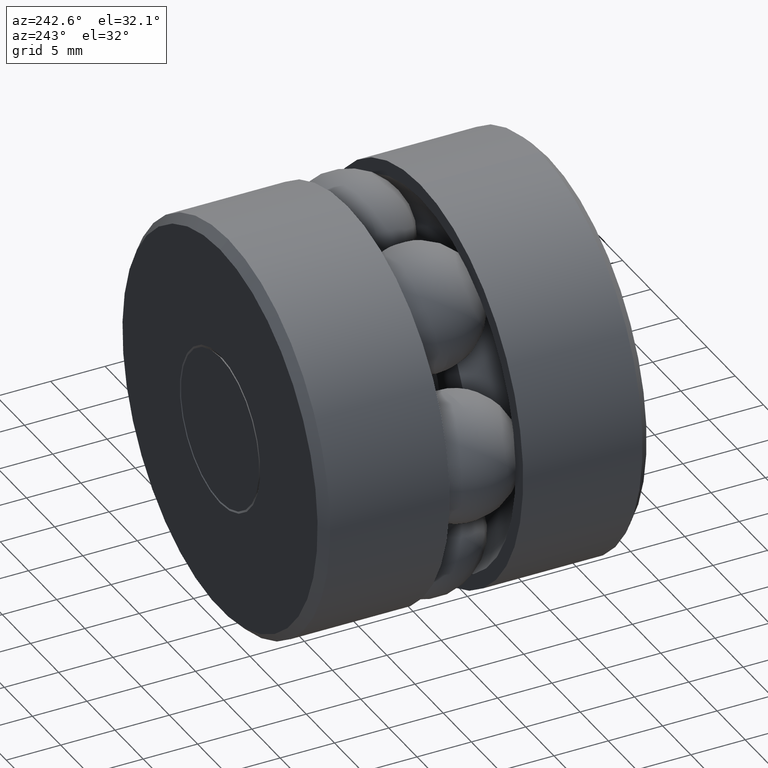
[diagram: clean part render]
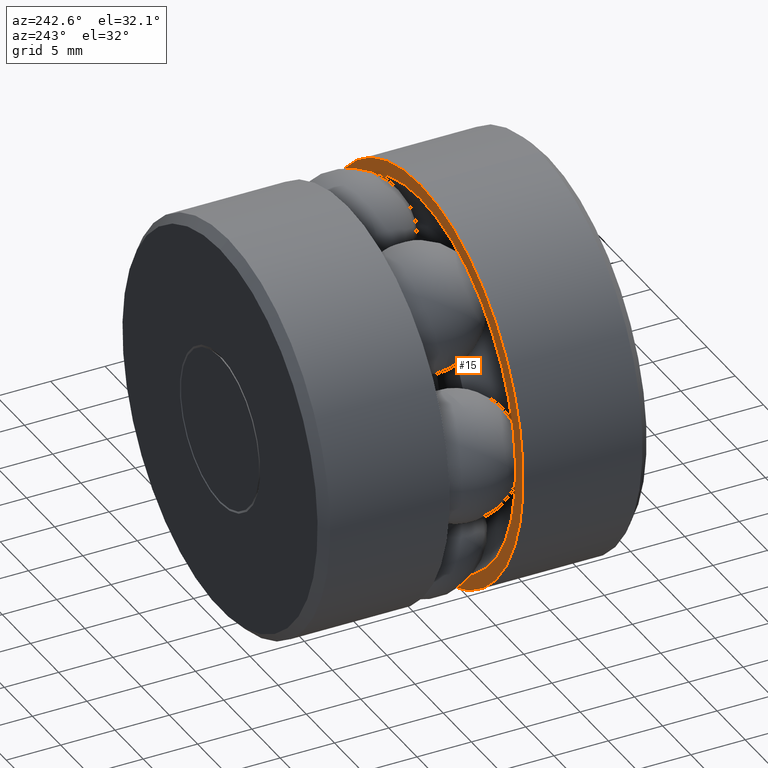
[diagram: same view with one face highlighted and labeled with its STEP entity id]
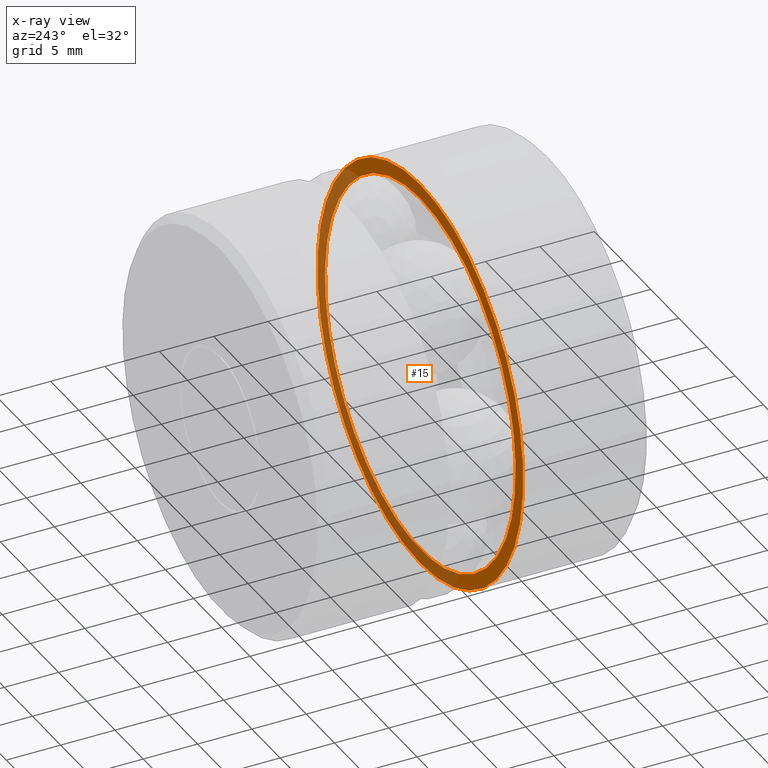
[diagram: x-ray of the same camera — body ghosted, the highlighted face saturated]
A machine part, auxiliary view. The second image highlights one B-rep face of the part: STEP entity #15.
The next image is the same camera in x-ray: the body ghosted, the highlighted face saturated — about 44% of this face is hidden behind the body in this view.
In plain terms, the highlighted planar face has unit normal (-0, 1, 0).
Its self-contained STEP definition (entity closure, byte-faithful):
#15 = ADVANCED_FACE ( 'NONE', ( #483, #487 ), #242, .T. ) ;
#68 = AXIS2_PLACEMENT_3D ( 'NONE', #380, #453, #167 ) ;
#89 = EDGE_CURVE ( 'NONE', #255, #255, #456, .T. ) ;
#93 = EDGE_LOOP ( 'NONE', ( #212 ) ) ;
#113 = DIRECTION ( 'NONE',  ( 0.0000000000000000000, 0.0000000000000000000, 1.000000000000000000 ) ) ;
#125 = AXIS2_PLACEMENT_3D ( 'NONE', #241, #206, #113 ) ;
#147 = EDGE_CURVE ( 'NONE', #240, #240, #436, .T. ) ;
#167 = DIRECTION ( 'NONE',  ( 0.0000000000000000000, 0.0000000000000000000, 1.000000000000000000 ) ) ;
#187 = CARTESIAN_POINT ( 'NONE',  ( 0.0000000000000000000, 0.4623499999999997600, 0.6659499999999999300 ) ) ;
#206 = DIRECTION ( 'NONE',  ( -0.0000000000000000000, 1.000000000000000000, 0.0000000000000000000 ) ) ;
#212 = ORIENTED_EDGE ( 'NONE', *, *, #147, .T. ) ;
#218 = CARTESIAN_POINT ( 'NONE',  ( 0.0000000000000000000, 0.4623499999999999300, 0.0000000000000000000 ) ) ;
#223 = EDGE_LOOP ( 'NONE', ( #498 ) ) ;
#240 = VERTEX_POINT ( 'NONE', #257 ) ;
#241 = CARTESIAN_POINT ( 'NONE',  ( -0.7187500000000000000, 0.4623499999999998700, 0.0000000000000000000 ) ) ;
#242 = PLANE ( 'NONE',  #125 ) ;
#255 = VERTEX_POINT ( 'NONE', #187 ) ;
#257 = CARTESIAN_POINT ( 'NONE',  ( 0.0000000000000000000, 0.4623499999999999300, 0.7187500000000000000 ) ) ;
#270 = AXIS2_PLACEMENT_3D ( 'NONE', #218, #459, #418 ) ;
#380 = CARTESIAN_POINT ( 'NONE',  ( 0.0000000000000000000, 0.4623499999999997600, 0.0000000000000000000 ) ) ;
#418 = DIRECTION ( 'NONE',  ( 0.0000000000000000000, 0.0000000000000000000, 1.000000000000000000 ) ) ;
#436 = CIRCLE ( 'NONE', #270, 0.7187500000000000000 ) ;
#453 = DIRECTION ( 'NONE',  ( -0.0000000000000000000, 1.000000000000000000, -0.0000000000000000000 ) ) ;
#456 = CIRCLE ( 'NONE', #68, 0.6659499999999999300 ) ;
#459 = DIRECTION ( 'NONE',  ( -0.0000000000000000000, 1.000000000000000000, -0.0000000000000000000 ) ) ;
#483 = FACE_OUTER_BOUND ( 'NONE', #93, .T. ) ;
#487 = FACE_BOUND ( 'NONE', #223, .T. ) ;
#498 = ORIENTED_EDGE ( 'NONE', *, *, #89, .F. ) ;